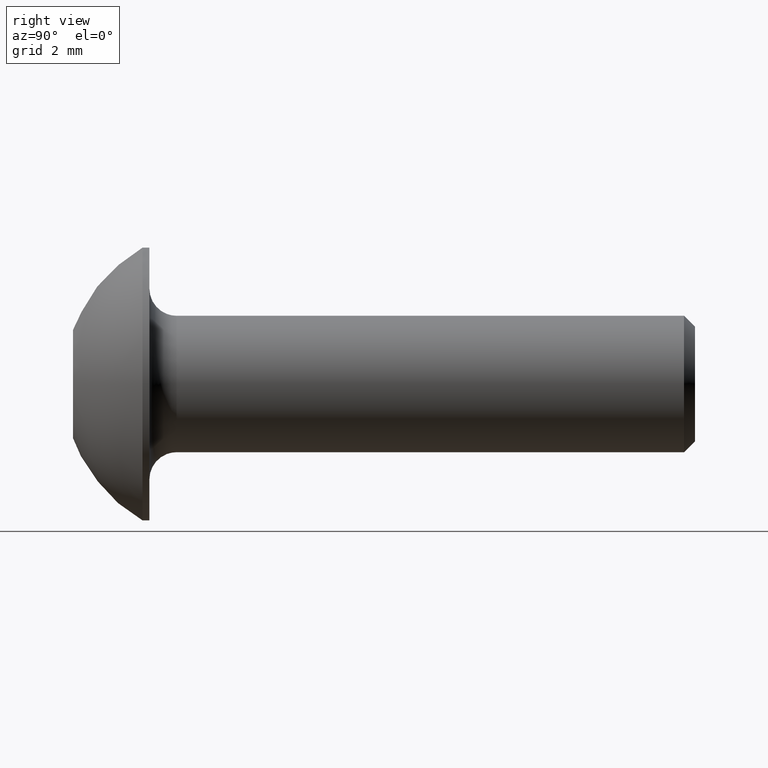
[diagram: clean part render]
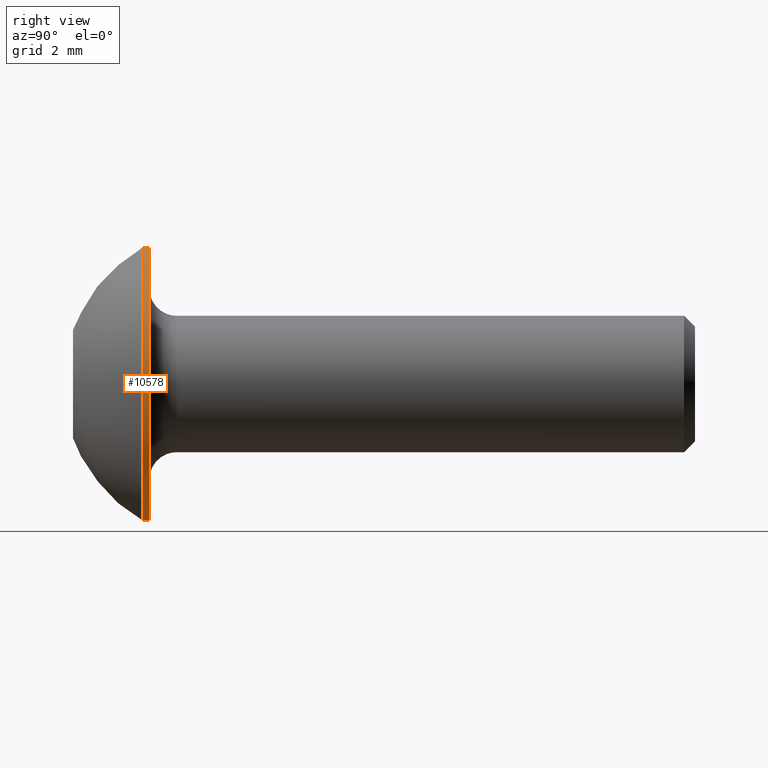
[diagram: same view with one face highlighted and labeled with its STEP entity id]
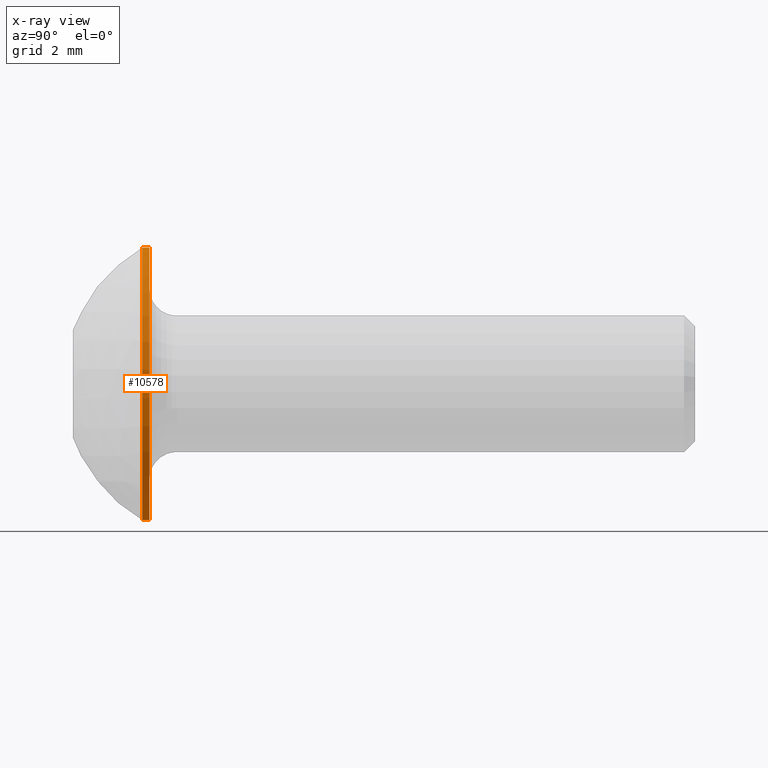
[diagram: x-ray of the same camera — body ghosted, the highlighted face saturated]
A machine part, right view. The second image highlights one B-rep face of the part: STEP entity #10578.
The next image is the same camera in x-ray: the body ghosted, the highlighted face saturated — about 0% of this face is hidden behind the body in this view.
In plain terms, the highlighted cylindrical surface (bore or boss wall) has radius 5 mm, axis along (-0, -1, -0).
Its self-contained STEP definition (entity closure, byte-faithful):
#373 = CARTESIAN_POINT ( 'NONE',  ( 0.0000000000000000000, 2.799999999999999800, 0.0000000000000000000 ) ) ;
#2446 = VERTEX_POINT ( 'NONE', #9890 ) ;
#2550 = AXIS2_PLACEMENT_3D ( 'NONE', #12934, #5454, #14117 ) ;
#3119 = FACE_OUTER_BOUND ( 'NONE', #6976, .T. ) ;
#4195 = DIRECTION ( 'NONE',  ( -0.0000000000000000000, -1.000000000000000000, -0.0000000000000000000 ) ) ;
#5454 = DIRECTION ( 'NONE',  ( -0.0000000000000000000, -1.000000000000000000, -0.0000000000000000000 ) ) ;
#6515 = VERTEX_POINT ( 'NONE', #10946 ) ;
#6812 = CYLINDRICAL_SURFACE ( 'NONE', #14292, 5.000000000000000900 ) ;
#6976 = EDGE_LOOP ( 'NONE', ( #12723 ) ) ;
#7570 = FACE_OUTER_BOUND ( 'NONE', #15031, .T. ) ;
#9857 = CIRCLE ( 'NONE', #2550, 5.000000000000000900 ) ;
#9890 = CARTESIAN_POINT ( 'NONE',  ( 0.0000000000000000000, 2.550000000000000300, -5.000000000000000900 ) ) ;
#10578 = ADVANCED_FACE ( 'NONE', ( #7570, #3119 ), #6812, .T. ) ;
#10796 = ORIENTED_EDGE ( 'NONE', *, *, #11420, .F. ) ;
#10830 = DIRECTION ( 'NONE',  ( 0.0000000000000000000, 0.0000000000000000000, -1.000000000000000000 ) ) ;
#10946 = CARTESIAN_POINT ( 'NONE',  ( 0.0000000000000000000, 2.799999999999999800, -5.000000000000000900 ) ) ;
#10998 = AXIS2_PLACEMENT_3D ( 'NONE', #373, #4195, #15346 ) ;
#11420 = EDGE_CURVE ( 'NONE', #2446, #2446, #9857, .T. ) ;
#12136 = CARTESIAN_POINT ( 'NONE',  ( 0.0000000000000000000, 0.0000000000000000000, 0.0000000000000000000 ) ) ;
#12723 = ORIENTED_EDGE ( 'NONE', *, *, #15180, .T. ) ;
#12744 = CIRCLE ( 'NONE', #10998, 5.000000000000000900 ) ;
#12934 = CARTESIAN_POINT ( 'NONE',  ( 0.0000000000000000000, 2.550000000000000300, 0.0000000000000000000 ) ) ;
#13189 = DIRECTION ( 'NONE',  ( -0.0000000000000000000, -1.000000000000000000, -0.0000000000000000000 ) ) ;
#14117 = DIRECTION ( 'NONE',  ( 0.0000000000000000000, 0.0000000000000000000, -1.000000000000000000 ) ) ;
#14292 = AXIS2_PLACEMENT_3D ( 'NONE', #12136, #13189, #10830 ) ;
#15031 = EDGE_LOOP ( 'NONE', ( #10796 ) ) ;
#15180 = EDGE_CURVE ( 'NONE', #6515, #6515, #12744, .T. ) ;
#15346 = DIRECTION ( 'NONE',  ( 0.0000000000000000000, 0.0000000000000000000, -1.000000000000000000 ) ) ;